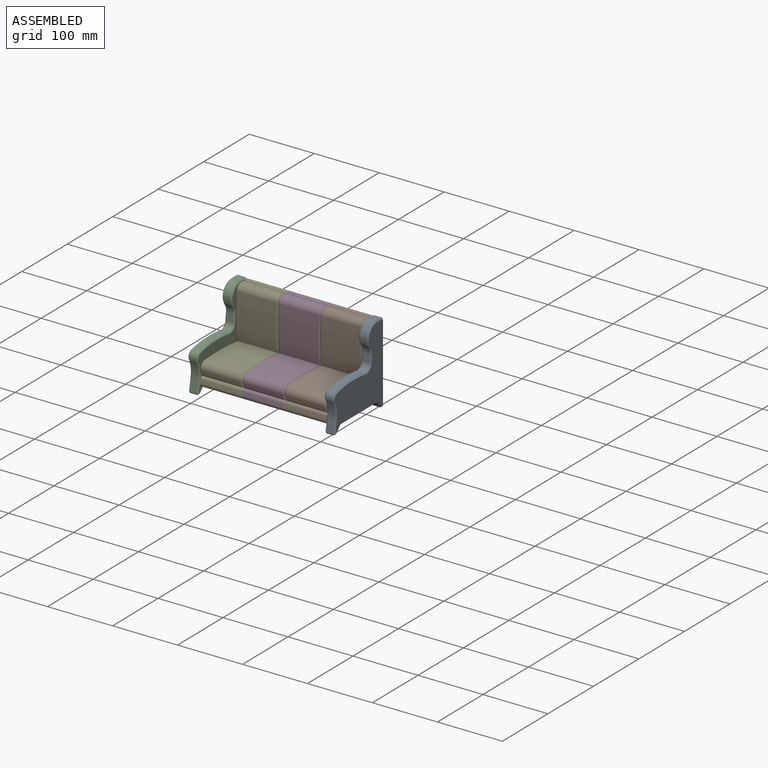
[diagram: assembled view]
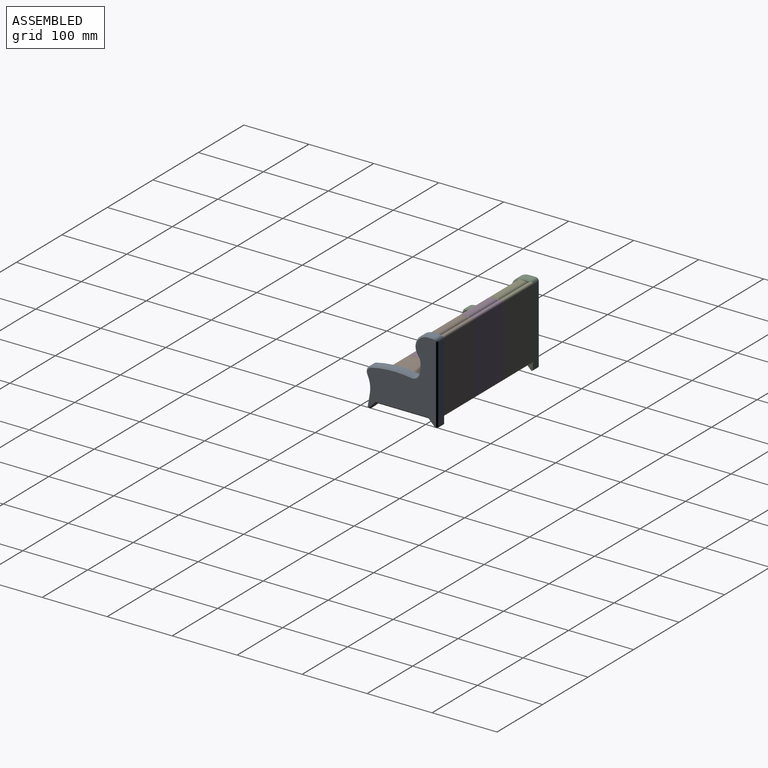
[diagram: assembled view, second angle]
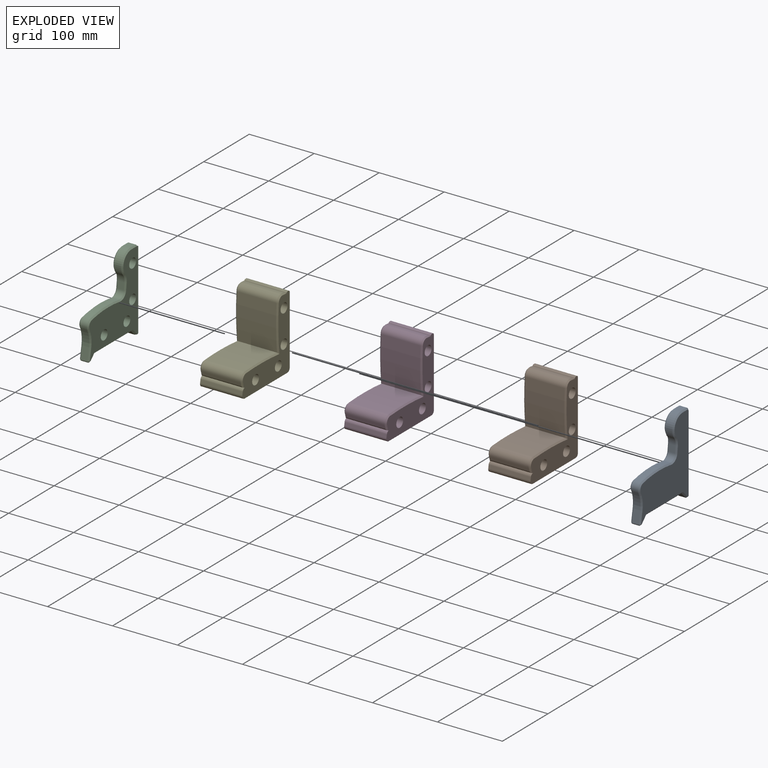
[diagram: exploded view]
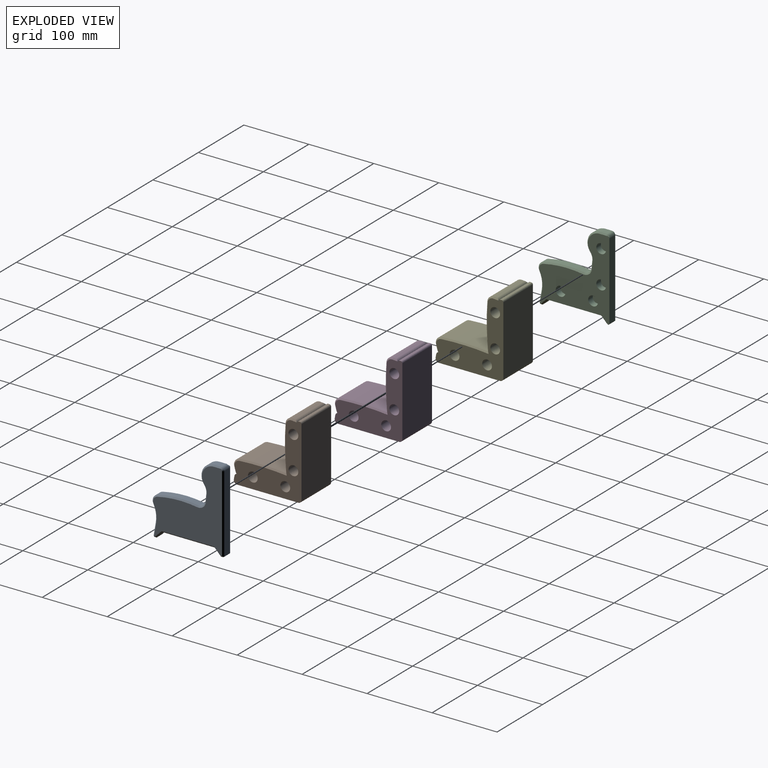
[diagram: exploded view, second angle]
ASSEMBLY  parts=5 mates=4
PART A: 63 faces, bbox 15x110.1x125 mm
  f0: plane 118x13mm, normal (0,1,0), area 1534mm2, adj f5,f20,f21,f36
  f1: plane 84.66x13mm, normal (0,0,-1), area 1032.7mm2, adj f5,f16,f17,f37,f41,f54
  f2: plane 2x0.91mm, normal (0,0,1), area 0.8mm2, adj f3,f4,f5,f53
  f3: cylinder r=2.5mm len=2.22mm, axis (1,0,0), area 4.3mm2, adj f2,f5,f20,f53
  f4: cylinder r=2.5mm len=0.24mm, axis (-1,0,0), area 0mm2, adj f2,f5,f53
  f5: plane 123x108.07mm, normal (-1,0,0), area 6493.2mm2, adj f0,f1,f2,f3,f4,f6,f20,f21
  f6: plane 13x3mm, normal (0,0,-1), area 36.2mm2, adj f5,f17,f21,f40,f54
  f7: plane 11x10mm, normal (0,0,1), area 110mm2, adj f8,f20,f32,f52
  f8: cylinder r=20mm len=32.37mm, axis (-1,0,0), area 492.3mm2, adj f7,f9,f30,f51
  f9: cylinder r=15mm len=11mm, axis (-1,0,0), area 128.3mm2, adj f8,f10,f28,f50
  f10: plane 11x10.95mm, normal (0,-0.99,0.11), area 121.2mm2, adj f9,f19,f26,f49
  f11: cylinder r=165.16mm len=61.95mm, axis (-1,0,0), area 685.8mm2, adj f12,f19,f23,f47
  f12: cylinder r=10mm len=14.26mm, axis (-1,0,0), area 199.9mm2, adj f11,f13,f25,f46
  f13: cylinder r=40mm len=24.94mm, axis (-1,0,0), area 282.1mm2, adj f12,f14,f27,f45
  f14: plane 18.46x11mm, normal (0,-0.98,0.17), area 206.2mm2, adj f13,f22,f29,f44
  f15: plane 11x2.62mm, normal (0,0,-1), area 28.8mm2, adj f16,f22,f33,f42
  f16: plane 11x10mm, normal (0,0.71,-0.71), area 155.6mm2, adj f1,f15,f35,f41
  f17: plane 11x10mm, normal (0,-0.71,-0.71), area 155.6mm2, adj f1,f6,f39,f54
  f18: plane 121x106.07mm, normal (1,0,0), area 6786.7mm2, adj f23,f24,f25,f26,f27,f28,f29,f30
  f19: cylinder r=10mm len=11.5mm, axis (-1,0,0), area 177.9mm2, adj f10,f11,f24,f48
  f20: cylinder r=5mm len=13mm, axis (-1,0,0), area 89.8mm2, adj f0,f3,f5,f7,f34,f53
  f21: cylinder r=2mm len=13mm, axis (-1,0,0), area 40.8mm2, adj f0,f5,f6,f38
  f22: cylinder r=2mm len=11mm, axis (1,0,0), area 38.4mm2, adj f14,f15,f31,f43
  f23: cone r=165.16mm half-angle=45deg, axis (-1,0,0), area 175.3mm2, adj f11,f18,f24,f25
  f24: cone r=12mm half-angle=45deg, axis (1,0,0), area 50.3mm2, adj f18,f19,f23,f26
  f25: cone r=10mm half-angle=45deg, axis (-1,0,0), area 46.2mm2, adj f12,f18,f23,f27
  f26: plane 11.17x3.2mm, normal (0.71,-0.7,0.08), area 31.2mm2, adj f10,f18,f24,f28
  f27: cone r=42mm half-angle=45deg, axis (1,0,0), area 74.3mm2, adj f13,f18,f25,f29
  f28: cone r=17mm half-angle=45deg, axis (1,0,0), area 35.2mm2, adj f9,f18,f26,f30
  f29: plane 18.8x5.22mm, normal (0.71,-0.7,0.12), area 53mm2, adj f14,f18,f27,f31
  f30: cone r=20mm half-angle=45deg, axis (-1,0,0), area 120.3mm2, adj f8,f18,f28,f32
  f31: cone r=2mm half-angle=45deg, axis (-1,0,0), area 4.9mm2, adj f22,f29,f33
  f32: plane 10x2mm, normal (0.71,0,0.71), area 28.3mm2, adj f7,f18,f30,f34
  f33: plane 2.62x2mm, normal (0.71,0,-0.71), area 6.2mm2, adj f15,f18,f31,f35
  f34: cone r=3mm half-angle=45deg, axis (-1,0,0), area 17.8mm2, adj f18,f20,f32,f36
  f35: plane 12x10.83mm, normal (0.71,0.5,-0.5), area 40mm2, adj f16,f18,f33,f37
  f36: plane 118x2mm, normal (0.71,0.71,0), area 333.8mm2, adj f0,f18,f34,f38
  f37: plane 80.66x2mm, normal (0.71,0,-0.71), area 225.8mm2, adj f1,f18,f35,f39
  f38: cone r=2mm half-angle=45deg, axis (-1,0,0), area 4.4mm2, adj f21,f36,f40
  f39: plane 12x10.83mm, normal (0.71,-0.5,-0.5), area 40mm2, adj f17,f18,f37,f40
  f40: plane 3x2mm, normal (0.71,0,-0.71), area 7.3mm2, adj f6,f18,f38,f39
  f41: plane 10.83x10mm, normal (-0.71,0.5,-0.5), area 36mm2, adj f1,f5,f16,f42
  f42: plane 2.62x2mm, normal (-0.71,0,-0.71), area 6.2mm2, adj f5,f15,f41,f43
  f43: cone r=2mm half-angle=45deg, axis (1,0,0), area 4.9mm2, adj f22,f42,f44
  f44: plane 18.8x5.22mm, normal (-0.71,-0.7,0.12), area 53mm2, adj f5,f14,f43,f45
  f45: cone r=40mm half-angle=45deg, axis (-1,0,0), area 74.3mm2, adj f5,f13,f44,f46
  f46: cone r=8mm half-angle=45deg, axis (1,0,0), area 46.2mm2, adj f5,f12,f45,f47
  f47: cone r=163.16mm half-angle=45deg, axis (1,0,0), area 175.3mm2, adj f5,f11,f46,f48
  f48: cone r=12mm half-angle=45deg, axis (-1,0,0), area 50.3mm2, adj f5,f19,f47,f49
  f49: plane 11.17x3.2mm, normal (-0.71,-0.7,0.08), area 31.2mm2, adj f5,f10,f48,f50
  f50: cone r=15mm half-angle=45deg, axis (-1,0,0), area 35.2mm2, adj f5,f9,f49,f51
  f51: cone r=18mm half-angle=45deg, axis (1,0,0), area 120.3mm2, adj f5,f8,f50,f52
  f52: plane 10x2mm, normal (-0.71,0,0.71), area 28.3mm2, adj f5,f7,f51,f53
  f53: cone r=3mm half-angle=45deg, axis (1,0,0), area 8.5mm2, adj f2,f3,f4,f5,f20,f52
  f54: plane 12.83x10mm, normal (-0.71,-0.5,-0.5), area 40mm2, adj f1,f5,f6,f17
  f55: plane 15x15mm, normal (-1,0,0), area 176.7mm2, adj f56
  f56: cylinder r=7.5mm len=15mm, axis (-1,0,0), area 471.2mm2, adj f5,f55
  f57: plane 15x15mm, normal (-1,0,0), area 176.7mm2, adj f58
  f58: cylinder r=7.5mm len=15mm, axis (-1,0,0), area 471.2mm2, adj f5,f57
  f59: plane 15x15mm, normal (-1,0,0), area 176.7mm2, adj f60
  f60: cylinder r=7.5mm len=15mm, axis (-1,0,0), area 471.2mm2, adj f5,f59
  f61: plane 15x15mm, normal (-1,0,0), area 176.7mm2, adj f62
  f62: cylinder r=7.5mm len=15mm, axis (-1,0,0), area 471.2mm2, adj f5,f61
PART B: 37 faces, bbox 65x105.2x113.7 mm
  f0: cone r=8mm half-angle=45deg, axis (-1,0,0), area 44.9mm2, adj f1,f4,f10,f35
  f1: cone r=428.73mm half-angle=45deg, axis (-1,0,0), area 203.6mm2, adj f0,f2,f9,f35
  f2: cone r=394.76mm half-angle=45deg, axis (-1,0,0), area 199.8mm2, adj f1,f3,f8,f35
  f3: cone r=8mm half-angle=45deg, axis (-1,0,0), area 40.3mm2, adj f2,f5,f7,f35
  f4: plane 8.59x4.23mm, normal (0.71,-0.68,-0.18), area 21.7mm2, adj f0,f11,f25,f35
  f5: plane 7.46x2.65mm, normal (0.71,0.06,0.7), area 17.8mm2, adj f3,f6,f24,f35
  f6: plane 61x3.48mm, normal (0,0.09,1), area 213mm2, adj f5,f7,f23,f24
  f7: cylinder r=10mm len=61mm, axis (-1,0,0), area 965.7mm2, adj f3,f6,f8,f22
  f8: cylinder r=396.76mm len=69.49mm, axis (-1,0,0), area 4244.7mm2, adj f2,f7,f9,f21
  f9: cylinder r=430.73mm len=70.84mm, axis (-1,0,0), area 4326.7mm2, adj f1,f8,f10,f20
  f10: cylinder r=10mm len=61mm, axis (-1,0,0), area 1076.2mm2, adj f0,f9,f11,f19
  f11: plane 61x4.73mm, normal (0,-0.97,-0.26), area 298.4mm2, adj f4,f10,f18,f25
  f12: cylinder r=2.5mm len=65mm, axis (1,0,0), area 255.3mm2, adj f14,f15,f31,f35
  f13: cylinder r=2.5mm len=65mm, axis (-1,0,0), area 255.3mm2, adj f14,f15,f30,f35
  f14: plane 65x2mm, normal (0,0,1), area 130mm2, adj f12,f13,f15,f35
  f15: plane 113x104.25mm, normal (-1,0,0), area 4682.7mm2, adj f12,f13,f14,f16,f17,f18,f19,f20
  f16: plane 65x5mm, normal (0,-0.98,0.17), area 330mm2, adj f15,f17,f27,f35
  f17: cylinder r=5mm len=65mm, axis (1,0,0), area 567.2mm2, adj f15,f16,f29,f35
  f18: plane 8.59x4.23mm, normal (-0.71,-0.68,-0.18), area 21.7mm2, adj f11,f15,f19,f25
  f19: cone r=8mm half-angle=45deg, axis (1,0,0), area 44.9mm2, adj f10,f15,f18,f20
  f20: cone r=430.73mm half-angle=45deg, axis (1,0,0), area 203.6mm2, adj f9,f15,f19,f21
  f21: cone r=396.76mm half-angle=45deg, axis (1,0,0), area 199.8mm2, adj f8,f15,f20,f22
  f22: cone r=8mm half-angle=45deg, axis (1,0,0), area 40.3mm2, adj f7,f15,f21,f23
  f23: plane 7.46x2.65mm, normal (-0.71,0.06,0.7), area 17.8mm2, adj f6,f15,f22,f24
  f24: cylinder r=5mm len=65mm, axis (-1,0,0), area 470mm2, adj f5,f6,f15,f23,f31,f35
  f25: cylinder r=5mm len=65mm, axis (-1,0,0), area 413.2mm2, adj f4,f11,f15,f18,f26,f35
  f26: plane 65x0.36mm, normal (0,0,-1), area 23.3mm2, adj f15,f25,f27,f35
  f27: cylinder r=5mm len=65mm, axis (-1,0,0), area 453.8mm2, adj f15,f16,f26,f35
  f28: cylinder r=5mm len=65mm, axis (-1,0,0), area 510.5mm2, adj f15,f29,f30,f35
  f29: plane 94.25x65mm, normal (0,0,-1), area 6126.1mm2, adj f15,f17,f28,f35
  f30: plane 105.5x65mm, normal (0,1,0), area 6857.5mm2, adj f13,f15,f28,f35
  f31: plane 65x2.08mm, normal (0,-1,0), area 135.3mm2, adj f12,f15,f24,f35
  f32: cylinder r=7.5mm len=65mm, axis (1,0,0), area 3063.1mm2, adj f15,f35
  f33: cylinder r=7.5mm len=65mm, axis (1,0,0), area 3063.1mm2, adj f15,f35
  f34: cylinder r=7.5mm len=65mm, axis (1,0,0), area 3063.1mm2, adj f15,f35
  f35: plane 113x104.25mm, normal (1,0,0), area 4682.7mm2, adj f0,f1,f2,f3,f4,f5,f12,f13
  f36: cylinder r=7.5mm len=65mm, axis (1,0,0), area 3063.1mm2, adj f15,f35
PART C: 63 faces, bbox 15x110.1x125 mm
  f0: plane 118x13mm, normal (0,1,0), area 1534mm2, adj f5,f20,f21,f36
  f1: plane 84.66x13mm, normal (0,0,-1), area 1032.7mm2, adj f5,f16,f17,f37,f41,f54
  f2: plane 2x0.91mm, normal (0,0,1), area 0.8mm2, adj f3,f4,f5,f53
  f3: cylinder r=2.5mm len=2.22mm, axis (-1,0,0), area 4.3mm2, adj f2,f5,f20,f53
  f4: cylinder r=2.5mm len=0.24mm, axis (1,0,0), area 0mm2, adj f2,f5,f53
  f5: plane 123x108.07mm, normal (1,0,0), area 6493.2mm2, adj f0,f1,f2,f3,f4,f6,f20,f21
  f6: plane 13x3mm, normal (0,0,-1), area 36.2mm2, adj f5,f17,f21,f40,f54
  f7: plane 11x10mm, normal (0,0,1), area 110mm2, adj f8,f20,f32,f52
  f8: cylinder r=20mm len=32.37mm, axis (1,0,0), area 492.3mm2, adj f7,f9,f30,f51
  f9: cylinder r=15mm len=11mm, axis (1,0,0), area 128.3mm2, adj f8,f10,f28,f50
  f10: plane 11x10.95mm, normal (0,-0.99,0.11), area 121.2mm2, adj f9,f19,f26,f49
  f11: cylinder r=165.16mm len=61.95mm, axis (1,0,0), area 685.8mm2, adj f12,f19,f23,f47
  f12: cylinder r=10mm len=14.26mm, axis (1,0,0), area 199.9mm2, adj f11,f13,f25,f46
  f13: cylinder r=40mm len=24.94mm, axis (1,0,0), area 282.1mm2, adj f12,f14,f27,f45
  f14: plane 18.46x11mm, normal (0,-0.98,0.17), area 206.2mm2, adj f13,f22,f29,f44
  f15: plane 11x2.62mm, normal (0,0,-1), area 28.8mm2, adj f16,f22,f33,f42
  f16: plane 11x10mm, normal (0,0.71,-0.71), area 155.6mm2, adj f1,f15,f35,f41
  f17: plane 11x10mm, normal (0,-0.71,-0.71), area 155.6mm2, adj f1,f6,f39,f54
  f18: plane 121x106.07mm, normal (-1,0,0), area 6786.7mm2, adj f23,f24,f25,f26,f27,f28,f29,f30
  f19: cylinder r=10mm len=11.5mm, axis (1,0,0), area 177.9mm2, adj f10,f11,f24,f48
  f20: cylinder r=5mm len=13mm, axis (1,0,0), area 89.8mm2, adj f0,f3,f5,f7,f34,f53
  f21: cylinder r=2mm len=13mm, axis (1,0,0), area 40.8mm2, adj f0,f5,f6,f38
  f22: cylinder r=2mm len=11mm, axis (-1,0,0), area 38.4mm2, adj f14,f15,f31,f43
  f23: cone r=165.16mm half-angle=45deg, axis (1,0,0), area 175.3mm2, adj f11,f18,f24,f25
  f24: cone r=12mm half-angle=45deg, axis (-1,0,0), area 50.3mm2, adj f18,f19,f23,f26
  f25: cone r=10mm half-angle=45deg, axis (1,0,0), area 46.2mm2, adj f12,f18,f23,f27
  f26: plane 11.17x3.2mm, normal (-0.71,-0.7,0.08), area 31.2mm2, adj f10,f18,f24,f28
  f27: cone r=42mm half-angle=45deg, axis (-1,0,0), area 74.3mm2, adj f13,f18,f25,f29
  f28: cone r=17mm half-angle=45deg, axis (-1,0,0), area 35.2mm2, adj f9,f18,f26,f30
  f29: plane 18.8x5.22mm, normal (-0.71,-0.7,0.12), area 53mm2, adj f14,f18,f27,f31
  f30: cone r=20mm half-angle=45deg, axis (1,0,0), area 120.3mm2, adj f8,f18,f28,f32
  f31: cone r=2mm half-angle=45deg, axis (1,0,0), area 4.9mm2, adj f22,f29,f33
  f32: plane 10x2mm, normal (-0.71,0,0.71), area 28.3mm2, adj f7,f18,f30,f34
  f33: plane 2.62x2mm, normal (-0.71,0,-0.71), area 6.2mm2, adj f15,f18,f31,f35
  f34: cone r=3mm half-angle=45deg, axis (1,0,0), area 17.8mm2, adj f18,f20,f32,f36
  f35: plane 12x10.83mm, normal (-0.71,0.5,-0.5), area 40mm2, adj f16,f18,f33,f37
  f36: plane 118x2mm, normal (-0.71,0.71,0), area 333.8mm2, adj f0,f18,f34,f38
  f37: plane 80.66x2mm, normal (-0.71,0,-0.71), area 225.8mm2, adj f1,f18,f35,f39
  f38: cone r=2mm half-angle=45deg, axis (1,0,0), area 4.4mm2, adj f21,f36,f40
  f39: plane 12x10.83mm, normal (-0.71,-0.5,-0.5), area 40mm2, adj f17,f18,f37,f40
  f40: plane 3x2mm, normal (-0.71,0,-0.71), area 7.3mm2, adj f6,f18,f38,f39
  f41: plane 10.83x10mm, normal (0.71,0.5,-0.5), area 36mm2, adj f1,f5,f16,f42
  f42: plane 2.62x2mm, normal (0.71,0,-0.71), area 6.2mm2, adj f5,f15,f41,f43
  f43: cone r=2mm half-angle=45deg, axis (-1,0,0), area 4.9mm2, adj f22,f42,f44
  f44: plane 18.8x5.22mm, normal (0.71,-0.7,0.12), area 53mm2, adj f5,f14,f43,f45
  f45: cone r=40mm half-angle=45deg, axis (1,0,0), area 74.3mm2, adj f5,f13,f44,f46
  f46: cone r=8mm half-angle=45deg, axis (-1,0,0), area 46.2mm2, adj f5,f12,f45,f47
  f47: cone r=163.16mm half-angle=45deg, axis (-1,0,0), area 175.3mm2, adj f5,f11,f46,f48
  f48: cone r=12mm half-angle=45deg, axis (1,0,0), area 50.3mm2, adj f5,f19,f47,f49
  f49: plane 11.17x3.2mm, normal (0.71,-0.7,0.08), area 31.2mm2, adj f5,f10,f48,f50
  f50: cone r=15mm half-angle=45deg, axis (1,0,0), area 35.2mm2, adj f5,f9,f49,f51
  f51: cone r=18mm half-angle=45deg, axis (-1,0,0), area 120.3mm2, adj f5,f8,f50,f52
  f52: plane 10x2mm, normal (0.71,0,0.71), area 28.3mm2, adj f5,f7,f51,f53
  f53: cone r=3mm half-angle=45deg, axis (-1,0,0), area 8.5mm2, adj f2,f3,f4,f5,f20,f52
  f54: plane 12.83x10mm, normal (0.71,-0.5,-0.5), area 40mm2, adj f1,f5,f6,f17
  f55: plane 15x15mm, normal (1,0,0), area 176.7mm2, adj f56
  f56: cylinder r=7.5mm len=15mm, axis (1,0,0), area 471.2mm2, adj f5,f55
  f57: plane 15x15mm, normal (1,0,0), area 176.7mm2, adj f58
  f58: cylinder r=7.5mm len=15mm, axis (1,0,0), area 471.2mm2, adj f5,f57
  f59: plane 15x15mm, normal (1,0,0), area 176.7mm2, adj f60
  f60: cylinder r=7.5mm len=15mm, axis (1,0,0), area 471.2mm2, adj f5,f59
  f61: plane 15x15mm, normal (1,0,0), area 176.7mm2, adj f62
  f62: cylinder r=7.5mm len=15mm, axis (1,0,0), area 471.2mm2, adj f5,f61
PART D: same geometry as B
PART E: same geometry as B
PLACE A t=(65,0,0)mm
PLACE B t=(130,0,0)mm
PLACE C at identity fixed
PLACE D t=(65,0,0)mm
PLACE E at identity
MATE fastened B.f32 <-> D.f32  axis (-1,0,0) through (130,12.5,57.96)mm
MATE fastened D.f32 <-> E.f32  axis (-1,0,0) through (65,12.5,57.96)mm
MATE fastened E.f32 <-> C.f62  axis (-1,0,0) through (0,12.5,57.96)mm
MATE fastened B.f32 <-> A.f62  axis (1,0,0) through (195,12.5,57.96)mm
